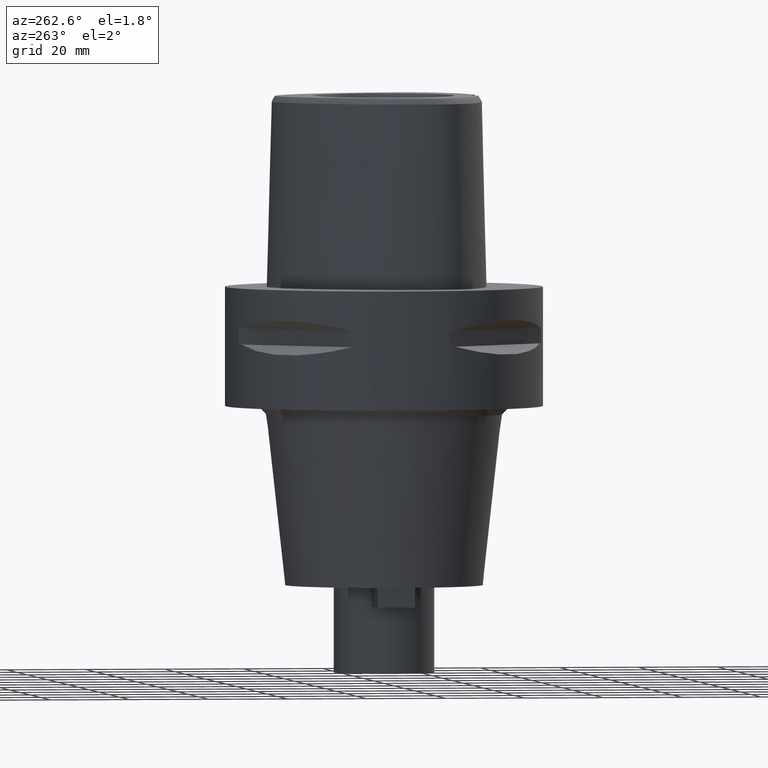
[diagram: clean part render]
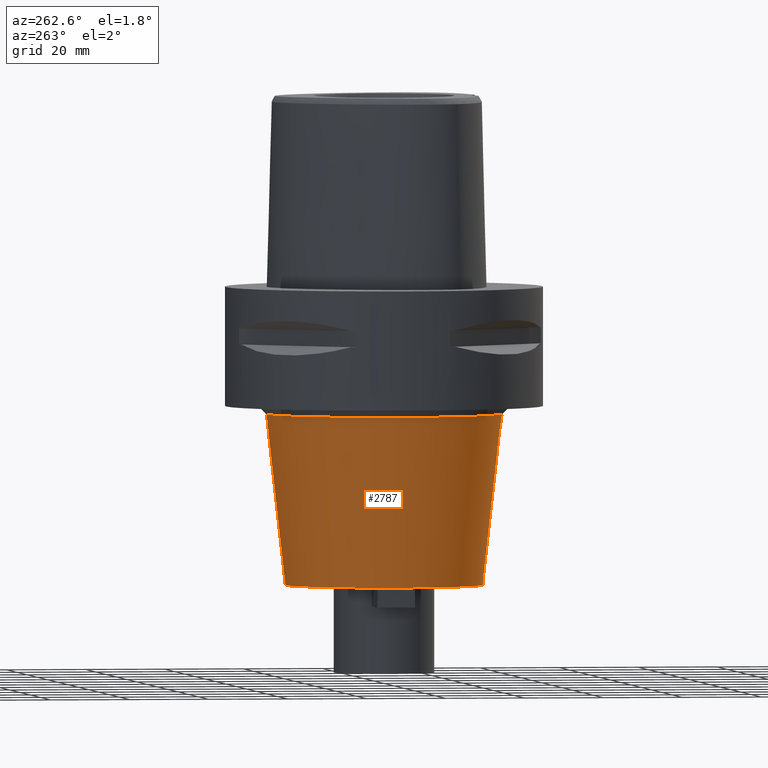
[diagram: same view with one face highlighted and labeled with its STEP entity id]
A machine part, auxiliary view. The second image highlights one B-rep face of the part: STEP entity #2787.
In plain terms, the highlighted conical surface has half-angle 6.34 deg.
Its self-contained STEP definition (entity closure, byte-faithful):
#549=CARTESIAN_POINT('',(0.E0,0.E0,-3.2E1));
#550=DIRECTION('',(0.E0,0.E0,-1.E0));
#551=DIRECTION('',(0.E0,-1.E0,0.E0));
#552=AXIS2_PLACEMENT_3D('',#549,#550,#551);
#564=DIRECTION('',(0.E0,-1.104281999454E-1,-9.938841042379E-1));
#565=VECTOR('',#564,4.326460179476E1);
#566=CARTESIAN_POINT('',(0.E0,2.977763209755E1,-3.2E1));
#567=LINE('',#566,#565);
#579=DIRECTION('',(0.E0,1.104281999454E-1,-9.938841042379E-1));
#580=VECTOR('',#579,4.326460179476E1);
#581=CARTESIAN_POINT('',(0.E0,-2.977763209755E1,-3.2E1));
#582=LINE('',#581,#580);
#594=CARTESIAN_POINT('',(0.E0,0.E0,-7.5E1));
#595=DIRECTION('',(0.E0,0.E0,1.E0));
#596=DIRECTION('',(0.E0,1.E0,0.E0));
#597=AXIS2_PLACEMENT_3D('',#594,#595,#596);
#1750=CARTESIAN_POINT('',(0.E0,2.977763209755E1,-3.2E1));
#1751=VERTEX_POINT('',#1750);
#1752=CARTESIAN_POINT('',(0.E0,-2.977763209755E1,-3.2E1));
#1753=VERTEX_POINT('',#1752);
#1754=CARTESIAN_POINT('',(0.E0,2.5E1,-7.5E1));
#1755=VERTEX_POINT('',#1754);
#1756=CARTESIAN_POINT('',(0.E0,-2.5E1,-7.5E1));
#1757=VERTEX_POINT('',#1756);
#2775=CARTESIAN_POINT('',(0.E0,0.E0,-5.35E1));
#2776=DIRECTION('',(0.E0,0.E0,1.E0));
#2777=DIRECTION('',(0.E0,1.E0,0.E0));
#2778=AXIS2_PLACEMENT_3D('',#2775,#2776,#2777);
#2779=CONICAL_SURFACE('',#2778,2.738881604878E1,6.34E0);
#2780=ORIENTED_EDGE('',*,*,#2765,.F.);
#2781=ORIENTED_EDGE('',*,*,#2742,.F.);
#2782=ORIENTED_EDGE('',*,*,#2769,.T.);
#2784=ORIENTED_EDGE('',*,*,#2783,.F.);
#2785=EDGE_LOOP('',(#2780,#2781,#2782,#2784));
#2786=FACE_OUTER_BOUND('',#2785,.F.);
#553=CIRCLE('',#552,2.977763209755E1);
#598=CIRCLE('',#597,2.5E1);
#2742=EDGE_CURVE('',#1753,#1751,#553,.T.);
#2765=EDGE_CURVE('',#1751,#1755,#567,.T.);
#2769=EDGE_CURVE('',#1753,#1757,#582,.T.);
#2783=EDGE_CURVE('',#1755,#1757,#598,.T.);
#2787=ADVANCED_FACE('',(#2786),#2779,.T.);